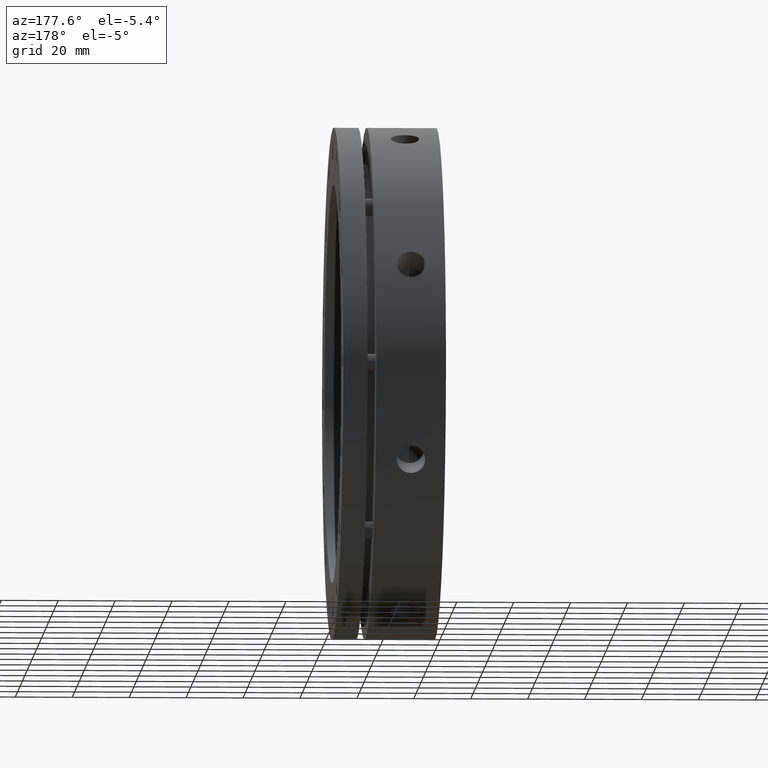
[diagram: clean part render]
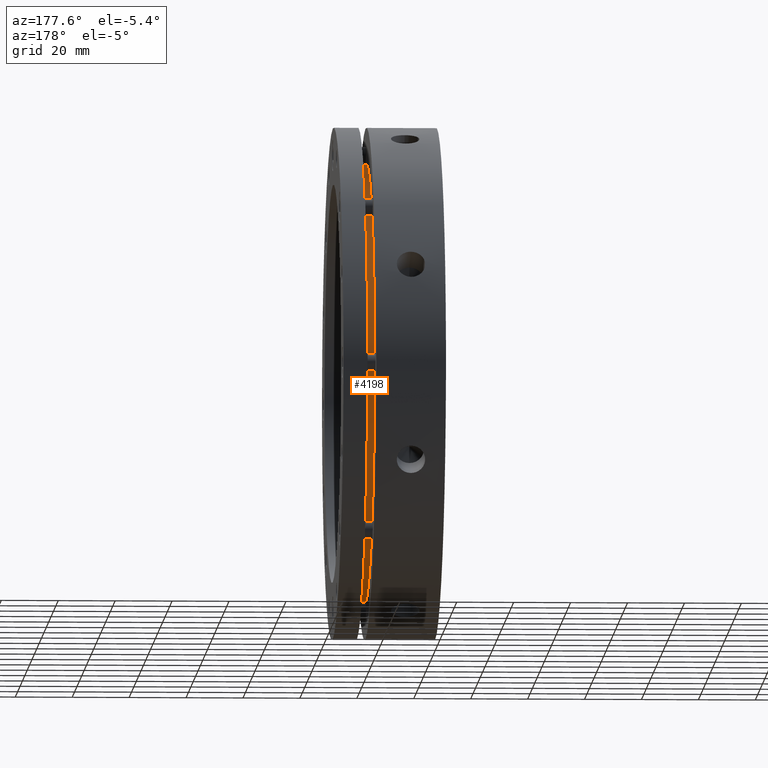
[diagram: same view with one face highlighted and labeled with its STEP entity id]
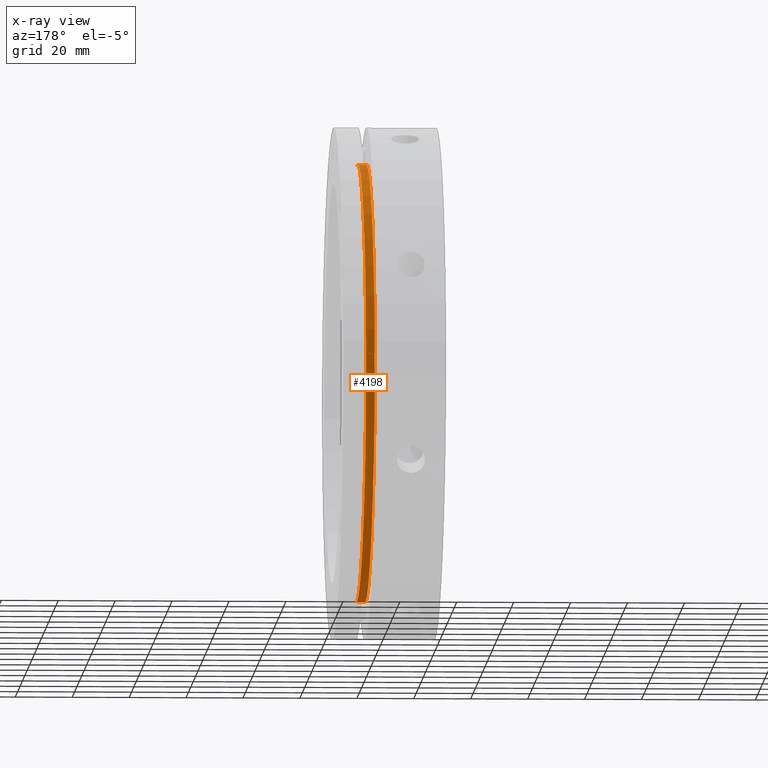
[diagram: x-ray of the same camera — body ghosted, the highlighted face saturated]
A machine part, auxiliary view. The second image highlights one B-rep face of the part: STEP entity #4198.
The next image is the same camera in x-ray: the body ghosted, the highlighted face saturated — about 2% of this face is hidden behind the body in this view.
In plain terms, the highlighted cylindrical surface (partial cylindrical patch) has radius 77 mm, axis along (-1, 0, 0).
Its self-contained STEP definition (entity closure, byte-faithful):
#272 = EDGE_LOOP ( 'NONE', ( #875, #879, #873, #877 ) ) ;
#727 = AXIS2_PLACEMENT_3D ( 'NONE', #3369, #3370, #3371 ) ;
#728 = AXIS2_PLACEMENT_3D ( 'NONE', #3363, #3364, #3365 ) ;
#785 = CYLINDRICAL_SURFACE ( 'NONE', #1111, 77.00000000000000000 ) ;
#873 = ORIENTED_EDGE ( 'NONE', *, *, #6039, .T. ) ;
#875 = ORIENTED_EDGE ( 'NONE', *, *, #6036, .T. ) ;
#877 = ORIENTED_EDGE ( 'NONE', *, *, #6040, .F. ) ;
#879 = ORIENTED_EDGE ( 'NONE', *, *, #6037, .T. ) ;
#1111 = AXIS2_PLACEMENT_3D ( 'NONE', #4957, #4955, #4953 ) ;
#1933 = LINE ( 'NONE', #3362, #1947 ) ;
#1943 = CIRCLE ( 'NONE', #728, 77.00000000000000000 ) ;
#1945 = CIRCLE ( 'NONE', #727, 77.00000000000000000 ) ;
#1947 = VECTOR ( 'NONE', #3357, 1000.000000000000000 ) ;
#1950 = LINE ( 'NONE', #3367, #1952 ) ;
#1952 = VECTOR ( 'NONE', #3361, 1000.000000000000000 ) ;
#3327 = FACE_OUTER_BOUND ( 'NONE', #272, .T. ) ;
#3357 = DIRECTION ( 'NONE',  ( -1.000000000000000000, 0.0000000000000000000, 0.0000000000000000000 ) ) ;
#3361 = DIRECTION ( 'NONE',  ( -1.000000000000000000, 0.0000000000000000000, 0.0000000000000000000 ) ) ;
#3362 = CARTESIAN_POINT ( 'NONE',  ( 25.99999999999997900, 9.429780353434619000E-015, -77.00000000000000000 ) ) ;
#3363 = CARTESIAN_POINT ( 'NONE',  ( 27.49999999999997900, 0.0000000000000000000, 0.0000000000000000000 ) ) ;
#3364 = DIRECTION ( 'NONE',  ( -1.000000000000000000, 0.0000000000000000000, 0.0000000000000000000 ) ) ;
#3365 = DIRECTION ( 'NONE',  ( 0.0000000000000000000, 0.0000000000000000000, 1.000000000000000000 ) ) ;
#3367 = CARTESIAN_POINT ( 'NONE',  ( 25.99999999999997900, 0.0000000000000000000, 77.00000000000000000 ) ) ;
#3369 = CARTESIAN_POINT ( 'NONE',  ( 24.49999999999997500, 0.0000000000000000000, 0.0000000000000000000 ) ) ;
#3370 = DIRECTION ( 'NONE',  ( 1.000000000000000000, -0.0000000000000000000, -0.0000000000000000000 ) ) ;
#3371 = DIRECTION ( 'NONE',  ( 0.0000000000000000000, 0.0000000000000000000, 1.000000000000000000 ) ) ;
#4001 = VERTEX_POINT ( 'NONE', #4554 ) ;
#4002 = VERTEX_POINT ( 'NONE', #4555 ) ;
#4005 = VERTEX_POINT ( 'NONE', #4558 ) ;
#4013 = VERTEX_POINT ( 'NONE', #4566 ) ;
#4198 = ADVANCED_FACE ( 'NONE', ( #3327 ), #785, .T. ) ;
#4554 = CARTESIAN_POINT ( 'NONE',  ( 24.49999999999997500, 0.0000000000000000000, 77.00000000000000000 ) ) ;
#4555 = CARTESIAN_POINT ( 'NONE',  ( 24.49999999999997500, 9.429780353434619000E-015, -77.00000000000000000 ) ) ;
#4558 = CARTESIAN_POINT ( 'NONE',  ( 27.49999999999997900, 0.0000000000000000000, 77.00000000000000000 ) ) ;
#4566 = CARTESIAN_POINT ( 'NONE',  ( 27.49999999999997900, 9.429780353434619000E-015, -77.00000000000000000 ) ) ;
#4953 = DIRECTION ( 'NONE',  ( 0.0000000000000000000, 0.0000000000000000000, 1.000000000000000000 ) ) ;
#4955 = DIRECTION ( 'NONE',  ( -1.000000000000000000, 0.0000000000000000000, 0.0000000000000000000 ) ) ;
#4957 = CARTESIAN_POINT ( 'NONE',  ( 25.99999999999997900, 0.0000000000000000000, 0.0000000000000000000 ) ) ;
#6036 = EDGE_CURVE ( 'NONE', #4005, #4013, #1943, .T. ) ;
#6037 = EDGE_CURVE ( 'NONE', #4013, #4002, #1933, .T. ) ;
#6039 = EDGE_CURVE ( 'NONE', #4002, #4001, #1945, .T. ) ;
#6040 = EDGE_CURVE ( 'NONE', #4005, #4001, #1950, .T. ) ;